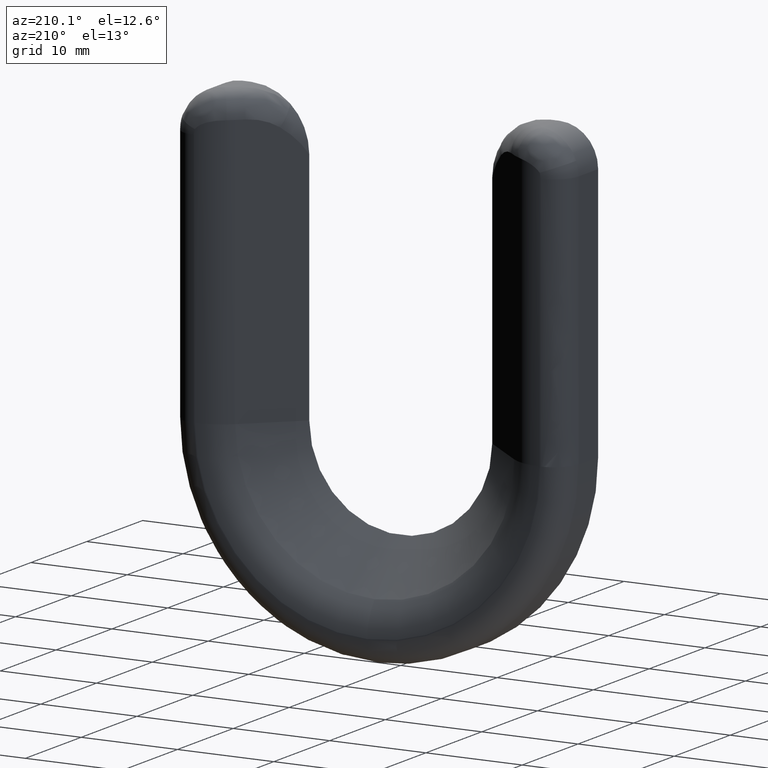
[diagram: clean part render]
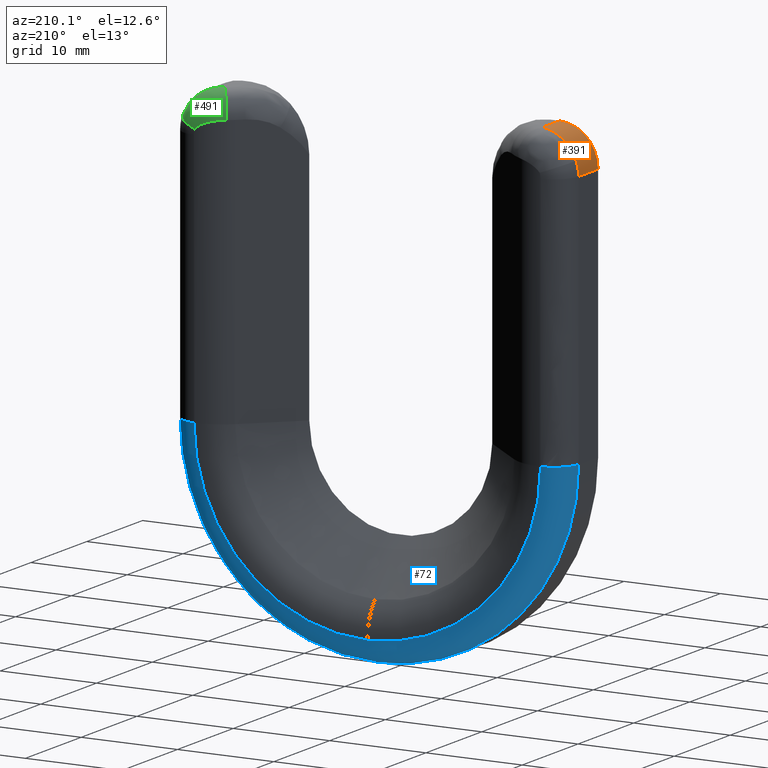
[diagram: same view with three faces highlighted in distinct colors, each labeled with its STEP entity id]
A machine part, auxiliary view with three faces highlighted in distinct colors.
Their STEP definitions:

[orange] entity #391 — the highlighted cylindrical surface (partial cylindrical patch) has radius 4 mm, axis along (0, -1, 0).
#16 = CYLINDRICAL_SURFACE ( 'NONE', #184, 4.000000000000003600 ) ;
#42 = VERTEX_POINT ( 'NONE', #367 ) ;
#66 = LINE ( 'NONE', #523, #816 ) ;
#156 = VERTEX_POINT ( 'NONE', #856 ) ;
#172 = CARTESIAN_POINT ( 'NONE',  ( -16.49999999999998900, 3.068681908964094000, 39.99999999999999300 ) ) ;
#184 = AXIS2_PLACEMENT_3D ( 'NONE', #806, #1014, #908 ) ;
#192 = VERTEX_POINT ( 'NONE', #291 ) ;
#217 = ORIENTED_EDGE ( 'NONE', *, *, #424, .F. ) ;
#223 = VERTEX_POINT ( 'NONE', #945 ) ;
#226 = DIRECTION ( 'NONE',  ( 0.0000000000000000000, 0.0000000000000000000, 1.000000000000000000 ) ) ;
#232 = CARTESIAN_POINT ( 'NONE',  ( -18.06440124175900800, 3.367900978395285300, 39.70351727990505700 ) ) ;
#291 = CARTESIAN_POINT ( 'NONE',  ( -16.49999999999998900, 0.0000000000000000000, 39.99999999999999300 ) ) ;
#325 = CARTESIAN_POINT ( 'NONE',  ( -19.10046779091603900, 3.466389364556989000, 39.06664757796588800 ) ) ;
#329 = DIRECTION ( 'NONE',  ( -0.0000000000000000000, 1.000000000000000000, -0.0000000000000000000 ) ) ;
#353 = EDGE_CURVE ( 'NONE', #678, #192, #66, .T. ) ;
#367 = CARTESIAN_POINT ( 'NONE',  ( -20.24337236859404500, 3.500000000000000000, 37.40966780130870000 ) ) ;
#391 = ADVANCED_FACE ( 'NONE', ( #594 ), #16, .T. ) ;
#402 = DIRECTION ( 'NONE',  ( -0.0000000000000000000, -1.000000000000000000, -0.0000000000000000000 ) ) ;
#423 = CARTESIAN_POINT ( 'NONE',  ( -19.90062501567306400, 3.498501515345013900, 38.14549419339217500 ) ) ;
#424 = EDGE_CURVE ( 'NONE', #223, #156, #536, .T. ) ;
#450 = AXIS2_PLACEMENT_3D ( 'NONE', #1091, #402, #1184 ) ;
#486 = EDGE_CURVE ( 'NONE', #42, #156, #946, .T. ) ;
#523 = CARTESIAN_POINT ( 'NONE',  ( -16.49999999999998900, 6.000000000000000000, 39.99999999999999300 ) ) ;
#524 = CARTESIAN_POINT ( 'NONE',  ( -20.24337236859404500, 3.500000000000000000, 37.40966780130870000 ) ) ;
#536 = LINE ( 'NONE', #914, #748 ) ;
#591 = ORIENTED_EDGE ( 'NONE', *, *, #1236, .T. ) ;
#594 = FACE_OUTER_BOUND ( 'NONE', #1165, .T. ) ;
#609 = CARTESIAN_POINT ( 'NONE',  ( -16.89687439914827700, 3.169673434943658400, 39.99999999999999300 ) ) ;
#613 = EDGE_CURVE ( 'NONE', #192, #223, #1129, .T. ) ;
#630 = B_SPLINE_CURVE_WITH_KNOTS ( 'NONE', 3,
 ( #709, #609, #800, #232, #902, #325, #1008, #423, #1104, #524 ),
 .UNSPECIFIED., .F., .F.,
 ( 4, 2, 2, 2, 4 ),
 ( 0.0000000000000000000, 0.001215186553605707500, 0.002430373107211415100, 0.003645559660817122800, 0.004860746214422830200 ),
 .UNSPECIFIED. ) ;
#678 = VERTEX_POINT ( 'NONE', #172 ) ;
#709 = CARTESIAN_POINT ( 'NONE',  ( -16.49999999999998900, 3.068681908964094000, 39.99999999999999300 ) ) ;
#712 = DIRECTION ( 'NONE',  ( 0.0000000000000000000, -1.000000000000000000, 0.0000000000000000000 ) ) ;
#748 = VECTOR ( 'NONE', #329, 1000.000000000000000 ) ;
#797 = CARTESIAN_POINT ( 'NONE',  ( -16.49999999999998900, 0.0000000000000000000, 35.99999999999999300 ) ) ;
#800 = CARTESIAN_POINT ( 'NONE',  ( -17.29182695291889300, 3.247122382974473100, 39.94162422922377000 ) ) ;
#806 = CARTESIAN_POINT ( 'NONE',  ( -16.49999999999998900, 6.000000000000000000, 35.99999999999999300 ) ) ;
#816 = VECTOR ( 'NONE', #712, 1000.000000000000000 ) ;
#856 = CARTESIAN_POINT ( 'NONE',  ( -20.49999999999998900, 3.500000000000001300, 35.99999999999999300 ) ) ;
#890 = DIRECTION ( 'NONE',  ( -0.0000000000000000000, -1.000000000000000000, -0.0000000000000000000 ) ) ;
#902 = CARTESIAN_POINT ( 'NONE',  ( -18.42712665924722500, 3.408916501183022300, 39.52887275744740200 ) ) ;
#908 = DIRECTION ( 'NONE',  ( 0.0000000000000000000, 0.0000000000000000000, -1.000000000000000000 ) ) ;
#914 = CARTESIAN_POINT ( 'NONE',  ( -20.49999999999998900, 6.000000000000000000, 35.99999999999999300 ) ) ;
#945 = CARTESIAN_POINT ( 'NONE',  ( -20.49999999999998900, 0.0000000000000000000, 35.99999999999999300 ) ) ;
#946 = CIRCLE ( 'NONE', #450, 4.000000000000003600 ) ;
#968 = ORIENTED_EDGE ( 'NONE', *, *, #613, .F. ) ;
#1008 = CARTESIAN_POINT ( 'NONE',  ( -19.39584570207941600, 3.481535554402674900, 38.78952926151512100 ) ) ;
#1014 = DIRECTION ( 'NONE',  ( 0.0000000000000000000, -1.000000000000000000, 0.0000000000000000000 ) ) ;
#1091 = CARTESIAN_POINT ( 'NONE',  ( -16.49999999999998900, 3.500000000000000000, 35.99999999999999300 ) ) ;
#1096 = ORIENTED_EDGE ( 'NONE', *, *, #353, .F. ) ;
#1103 = ORIENTED_EDGE ( 'NONE', *, *, #486, .T. ) ;
#1104 = CARTESIAN_POINT ( 'NONE',  ( -20.09905866763227400, 3.500000000000002200, 37.79289278530018900 ) ) ;
#1129 = CIRCLE ( 'NONE', #1159, 4.000000000000003600 ) ;
#1159 = AXIS2_PLACEMENT_3D ( 'NONE', #797, #890, #226 ) ;
#1165 = EDGE_LOOP ( 'NONE', ( #1096, #591, #1103, #217, #968 ) ) ;
#1184 = DIRECTION ( 'NONE',  ( 8.673617379884027600E-016, 0.0000000000000000000, 1.000000000000000000 ) ) ;
#1236 = EDGE_CURVE ( 'NONE', #678, #42, #630, .T. ) ;

[blue] entity #72 — the highlighted toroidal blend (fillet) surface has major radius 18 mm and minor (blend) radius 2.5 mm.
#27 = CARTESIAN_POINT ( 'NONE',  ( -20.49999999999999600, 3.500000000000001300, 9.500000000000010700 ) ) ;
#32 = AXIS2_PLACEMENT_3D ( 'NONE', #295, #198, #768 ) ;
#50 = EDGE_CURVE ( 'NONE', #1232, #755, #550, .T. ) ;
#69 = EDGE_CURVE ( 'NONE', #323, #518, #995, .T. ) ;
#72 = ADVANCED_FACE ( 'NONE', ( #1225 ), #704, .T. ) ;
#73 = DIRECTION ( 'NONE',  ( -0.0000000000000000000, -1.000000000000000000, -0.0000000000000000000 ) ) ;
#116 = EDGE_CURVE ( 'NONE', #518, #618, #158, .T. ) ;
#154 = CIRCLE ( 'NONE', #710, 20.50000000000000400 ) ;
#158 = CIRCLE ( 'NONE', #936, 2.499999999999998700 ) ;
#167 = DIRECTION ( 'NONE',  ( 0.0000000000000000000, 0.0000000000000000000, 1.000000000000000000 ) ) ;
#197 = CARTESIAN_POINT ( 'NONE',  ( 20.50000000000001100, 3.500000000000000000, 9.500000000000005300 ) ) ;
#198 = DIRECTION ( 'NONE',  ( 0.0000000000000000000, 1.000000000000000000, 0.0000000000000000000 ) ) ;
#263 = ORIENTED_EDGE ( 'NONE', *, *, #559, .F. ) ;
#295 = CARTESIAN_POINT ( 'NONE',  ( 6.938893903907228400E-015, 6.000000000000000000, 9.500000000000008900 ) ) ;
#323 = VERTEX_POINT ( 'NONE', #1002 ) ;
#363 = CARTESIAN_POINT ( 'NONE',  ( 18.00000000000001400, 3.500000000000000000, 9.500000000000005300 ) ) ;
#365 = CARTESIAN_POINT ( 'NONE',  ( 6.938893903907228400E-015, 3.500000000000000000, 9.500000000000008900 ) ) ;
#393 = CARTESIAN_POINT ( 'NONE',  ( -18.00000000000000000, 6.000000000000000900, 9.500000000000008900 ) ) ;
#420 = CARTESIAN_POINT ( 'NONE',  ( 18.00000000000001400, 6.000000000000000000, 9.500000000000005300 ) ) ;
#492 = AXIS2_PLACEMENT_3D ( 'NONE', #1237, #744, #646 ) ;
#511 = ORIENTED_EDGE ( 'NONE', *, *, #621, .F. ) ;
#518 = VERTEX_POINT ( 'NONE', #197 ) ;
#531 = ORIENTED_EDGE ( 'NONE', *, *, #50, .T. ) ;
#549 = ORIENTED_EDGE ( 'NONE', *, *, #69, .F. ) ;
#550 =( BOUNDED_CURVE ( )  B_SPLINE_CURVE ( 2, ( #688, #952, #393 ),
 .UNSPECIFIED., .F., .T. ) 
 B_SPLINE_CURVE_WITH_KNOTS ( ( 3, 3 ),
 ( 0.0000000000000000000, 1.000000000000000000 ),
 .UNSPECIFIED. ) 
 CURVE ( )  GEOMETRIC_REPRESENTATION_ITEM ( )  RATIONAL_B_SPLINE_CURVE ( ( 1.000000000000000000, 0.7071067811865474600, 1.000000000000000000 ) ) 
 REPRESENTATION_ITEM ( '' )  );
#558 = DIRECTION ( 'NONE',  ( 1.000000000000000000, 0.0000000000000000000, 0.0000000000000000000 ) ) ;
#559 = EDGE_CURVE ( 'NONE', #1232, #323, #154, .T. ) ;
#618 = VERTEX_POINT ( 'NONE', #420 ) ;
#621 = EDGE_CURVE ( 'NONE', #618, #755, #850, .T. ) ;
#646 = DIRECTION ( 'NONE',  ( 0.0000000000000000000, 0.0000000000000000000, 1.000000000000000000 ) ) ;
#650 = DIRECTION ( 'NONE',  ( 0.0000000000000000000, 0.0000000000000000000, 1.000000000000000000 ) ) ;
#688 = CARTESIAN_POINT ( 'NONE',  ( -20.49999999999999600, 3.500000000000001300, 9.500000000000010700 ) ) ;
#704 = TOROIDAL_SURFACE ( 'NONE', #741, 18.00000000000000700, 2.500000000000000000 ) ;
#710 = AXIS2_PLACEMENT_3D ( 'NONE', #365, #73, #650 ) ;
#741 = AXIS2_PLACEMENT_3D ( 'NONE', #746, #833, #167 ) ;
#744 = DIRECTION ( 'NONE',  ( -0.0000000000000000000, -1.000000000000000000, -0.0000000000000000000 ) ) ;
#746 = CARTESIAN_POINT ( 'NONE',  ( 6.938893903907228400E-015, 3.500000000000000000, 9.500000000000008900 ) ) ;
#751 = ORIENTED_EDGE ( 'NONE', *, *, #116, .F. ) ;
#755 = VERTEX_POINT ( 'NONE', #917 ) ;
#768 = DIRECTION ( 'NONE',  ( 0.0000000000000000000, 0.0000000000000000000, 1.000000000000000000 ) ) ;
#833 = DIRECTION ( 'NONE',  ( 0.0000000000000000000, 1.000000000000000000, 0.0000000000000000000 ) ) ;
#850 = CIRCLE ( 'NONE', #32, 18.00000000000000700 ) ;
#917 = CARTESIAN_POINT ( 'NONE',  ( -18.00000000000000000, 6.000000000000000900, 9.500000000000008900 ) ) ;
#936 = AXIS2_PLACEMENT_3D ( 'NONE', #363, #939, #558 ) ;
#939 = DIRECTION ( 'NONE',  ( 0.0000000000000000000, 0.0000000000000000000, 1.000000000000000000 ) ) ;
#952 = CARTESIAN_POINT ( 'NONE',  ( -20.49999999999999600, 6.000000000000000900, 9.500000000000010700 ) ) ;
#995 = CIRCLE ( 'NONE', #492, 20.50000000000000400 ) ;
#1002 = CARTESIAN_POINT ( 'NONE',  ( 6.938893903907228400E-015, 3.500000000000000000, -10.99999999999999600 ) ) ;
#1191 = EDGE_LOOP ( 'NONE', ( #531, #511, #751, #549, #263 ) ) ;
#1225 = FACE_OUTER_BOUND ( 'NONE', #1191, .T. ) ;
#1232 = VERTEX_POINT ( 'NONE', #27 ) ;
#1237 = CARTESIAN_POINT ( 'NONE',  ( 6.938893903907228400E-015, 3.500000000000000000, 9.500000000000008900 ) ) ;

[green] entity #491 — the highlighted face is a freeform B-spline surface patch.
#1 = CARTESIAN_POINT ( 'NONE',  ( 15.55390518256798600, 5.421562251320491300, 37.48771860806784400 ) ) ;
#7 = EDGE_LOOP ( 'NONE', ( #1045, #79, #1081, #578 ) ) ;
#9 = CARTESIAN_POINT ( 'NONE',  ( 17.69255101011138000, 6.160424451758079700, 39.89729704021700500 ) ) ;
#18 = CARTESIAN_POINT ( 'NONE',  ( 20.24337236859402700, 5.999999999999986700, 37.40966780130882800 ) ) ;
#63 = VERTEX_POINT ( 'NONE', #279 ) ;
#77 = CARTESIAN_POINT ( 'NONE',  ( 16.84996337146235500, 5.967564624330887700, 40.11500088435971600 ) ) ;
#79 = ORIENTED_EDGE ( 'NONE', *, *, #432, .F. ) ;
#91 = DIRECTION ( 'NONE',  ( 0.5615058552890974700, -0.8274727635856417000, 0.0000000000000000000 ) ) ;
#103 = CARTESIAN_POINT ( 'NONE',  ( 16.29045529359947200, 5.739739035027108500, 37.38344437926974700 ) ) ;
#113 = CARTESIAN_POINT ( 'NONE',  ( 20.24337236859402400, 3.500000000000001800, 37.40966780130883500 ) ) ;
#127 = CARTESIAN_POINT ( 'NONE',  ( 19.17927839874874300, 6.227292791573201000, 39.02502560940524000 ) ) ;
#179 = CARTESIAN_POINT ( 'NONE',  ( 15.30613592722471800, 5.279798037324646900, 40.06253507175741600 ) ) ;
#203 = CARTESIAN_POINT ( 'NONE',  ( 15.09623536177726400, 5.137363817928209300, 37.49999999999999300 ) ) ;
#209 = CARTESIAN_POINT ( 'NONE',  ( 17.04255175190604600, 5.931038541302804400, 37.15441873281688600 ) ) ;
#218 = CARTESIAN_POINT ( 'NONE',  ( 17.79113922220979300, 6.000000000000002700, 36.67816376905371800 ) ) ;
#228 = CARTESIAN_POINT ( 'NONE',  ( 17.90376463822277100, 6.000000000000000000, 36.52862542549079400 ) ) ;
#257 = CARTESIAN_POINT ( 'NONE',  ( 16.85599088289995300, 3.154661464012670400, 39.98842175160896800 ) ) ;
#270 = CARTESIAN_POINT ( 'NONE',  ( 17.78757650712125800, 3.325474914608258300, 39.79217689089283300 ) ) ;
#274 = CARTESIAN_POINT ( 'NONE',  ( 19.38538782832514300, 3.479838645305988200, 38.77764761881028500 ) ) ;
#279 = CARTESIAN_POINT ( 'NONE',  ( 20.24337236859402000, 3.500000000000000000, 37.40966780130884900 ) ) ;
#287 = CARTESIAN_POINT ( 'NONE',  ( 16.67606909255280100, 3.113485718487033300, 39.99999999999999300 ) ) ;
#294 = CARTESIAN_POINT ( 'NONE',  ( 17.48727701714228600, 3.277700931515590700, 39.88148005010439300 ) ) ;
#299 = CARTESIAN_POINT ( 'NONE',  ( 16.47617538208885800, 5.794046612590610000, 37.33402739823503700 ) ) ;
#302 = CARTESIAN_POINT ( 'NONE',  ( 16.61196141213767400, 5.832105898499667900, 37.29681771009475700 ) ) ;
#313 = CARTESIAN_POINT ( 'NONE',  ( 20.08503257980859000, 6.053095173596013900, 37.83013916962027400 ) ) ;
#315 = B_SPLINE_CURVE_WITH_KNOTS ( 'NONE', 3,
 ( #767, #638, #1253, #953, #274, #847, #484, #382, #963, #758, #1153, #294, #479, #971, #1162, #580 ),
 .UNSPECIFIED., .F., .F.,
 ( 4, 2, 2, 2, 2, 2, 2, 4 ),
 ( 0.0000000000000000000, 0.001212223257353838900, 0.001818334886030761400, 0.002424446514707684300, 0.003030558143384606300, 0.003636669772061529200, 0.004242781400738452100, 0.004848893029415374600 ),
 .UNSPECIFIED. ) ;
#317 = CARTESIAN_POINT ( 'NONE',  ( 17.82142452149323100, 6.000000000000396100, 36.63795250153054900 ) ) ;
#340 = CIRCLE ( 'NONE', #666, 2.500000000000000000 ) ;
#347 = CARTESIAN_POINT ( 'NONE',  ( 17.90376463822276800, 3.500000000000000000, 36.52862542549080900 ) ) ;
#348 = CARTESIAN_POINT ( 'NONE',  ( 15.36322852435634400, 5.309322929662678300, 37.49565816163526900 ) ) ;
#368 = CARTESIAN_POINT ( 'NONE',  ( 16.20160393499520900, 5.703567045159274200, 37.39650557148571900 ) ) ;
#374 = CIRCLE ( 'NONE', #974, 2.500000000000000000 ) ;
#377 = CARTESIAN_POINT ( 'NONE',  ( 17.97382476350762200, 3.351783519179319700, 39.72401484900906600 ) ) ;
#382 = CARTESIAN_POINT ( 'NONE',  ( 18.59917165903412700, 3.423628132912851300, 39.41096691884799700 ) ) ;
#406 = CARTESIAN_POINT ( 'NONE',  ( 17.63504364548560600, 5.996783933575277300, 36.81483031163351400 ) ) ;
#432 = EDGE_CURVE ( 'NONE', #514, #910, #542, .T. ) ;
#448 = DIRECTION ( 'NONE',  ( 0.9358430921485000300, 0.0000000000000000000, 0.3524169503272139800 ) ) ;
#449 = CARTESIAN_POINT ( 'NONE',  ( 16.02705816056155900, 5.661719341106890900, 40.16123930159886200 ) ) ;
#460 = CARTESIAN_POINT ( 'NONE',  ( 15.77907487930192300, 5.528733559574043000, 37.46247763252132800 ) ) ;
#474 = CARTESIAN_POINT ( 'NONE',  ( 18.33992002786507000, 3.397023309695623300, 39.55740640357962700 ) ) ;
#475 = CARTESIAN_POINT ( 'NONE',  ( 17.90376463822277100, 6.000000000000000000, 36.52862542549079400 ) ) ;
#479 = CARTESIAN_POINT ( 'NONE',  ( 17.28996314100020700, 3.242854679221999900, 39.92626829136511900 ) ) ;
#484 = CARTESIAN_POINT ( 'NONE',  ( 18.93374124260826700, 3.452131258880614300, 39.18089932874259800 ) ) ;
#491 = ADVANCED_FACE ( 'NONE', ( #1189 ), #752, .T. ) ;
#497 = CARTESIAN_POINT ( 'NONE',  ( 18.52096807254745400, 3.416052943189751300, 39.45818056260081600 ) ) ;
#508 = CARTESIAN_POINT ( 'NONE',  ( 17.90376463822278600, 6.000000000000001800, 36.52862542549080200 ) ) ;
#514 = VERTEX_POINT ( 'NONE', #793 ) ;
#517 = CARTESIAN_POINT ( 'NONE',  ( 17.72423498095031000, 5.997896757526059600, 36.73001991614142300 ) ) ;
#542 = B_SPLINE_CURVE_WITH_KNOTS ( 'NONE', 3,
 ( #203, #892, #1, #686, #103, #776, #209, #1198, #798, #517, #317, #228 ),
 .UNSPECIFIED., .F., .F.,
 ( 4, 2, 2, 2, 2, 4 ),
 ( 0.0000000000000000000, 0.0008068769139473474800, 0.001613753827894700200, 0.002420630741842052600, 0.002824069198815724100, 0.003227507655789395100 ),
 .UNSPECIFIED. ) ;
#548 = CARTESIAN_POINT ( 'NONE',  ( 17.41045269309355000, 3.264366776086283100, 39.89994034917854300 ) ) ;
#554 = EDGE_CURVE ( 'NONE', #63, #749, #315, .T. ) ;
#578 = ORIENTED_EDGE ( 'NONE', *, *, #554, .F. ) ;
#580 = CARTESIAN_POINT ( 'NONE',  ( 16.49999999999998900, 3.068681908964105500, 39.99999999999999300 ) ) ;
#603 = CARTESIAN_POINT ( 'NONE',  ( 17.00347954923932300, 5.925596280198957900, 37.16832148324160600 ) ) ;
#638 = CARTESIAN_POINT ( 'NONE',  ( 20.09904350051035500, 3.500000000000001800, 37.79293306158732000 ) ) ;
#653 = CARTESIAN_POINT ( 'NONE',  ( 15.09623536177726200, 5.137363817928208400, 37.49999999999999300 ) ) ;
#666 = AXIS2_PLACEMENT_3D ( 'NONE', #347, #1028, #448 ) ;
#671 = DIRECTION ( 'NONE',  ( -0.8274727635856417000, -0.5615058552890976900, -5.741745714893671700E-015 ) ) ;
#673 = CARTESIAN_POINT ( 'NONE',  ( 17.13266801104400000, 6.044718765631112800, 40.06169930387829900 ) ) ;
#686 = CARTESIAN_POINT ( 'NONE',  ( 16.04079081303507700, 5.647728556004320700, 37.42920461197191200 ) ) ;
#694 = CARTESIAN_POINT ( 'NONE',  ( 20.09335941470821400, 3.500000013169997100, 37.80802714950839800 ) ) ;
#707 = CARTESIAN_POINT ( 'NONE',  ( 19.35368331530791900, 3.479658012325690800, 38.83489922665442900 ) ) ;
#749 = VERTEX_POINT ( 'NONE', #919 ) ;
#752 =( BOUNDED_SURFACE ( )  B_SPLINE_SURFACE ( 3, 2, ( 
 ( #508, #18, #113 ),
 ( #218, #313, #694 ),
 ( #406, #994, #976 ),
 ( #1094, #127, #707 ),
 ( #603, #979, #1082 ),
 ( #302, #1078, #497 ),
 ( #299, #9, #474 ),
 ( #368, #673, #377 ),
 ( #1228, #77, #270 ),
 ( #460, #1042, #548 ),
 ( #1132, #449, #1029 ),
 ( #348, #930, #257 ),
 ( #826, #179, #287 ),
 ( #653, #754, #860 ) ),
 .UNSPECIFIED., .F., .F., .T. ) 
 B_SPLINE_SURFACE_WITH_KNOTS ( ( 4, 2, 2, 2, 2, 2, 4 ),
 ( 3, 3 ),
 ( 0.0000000000000000000, 0.0004724850626663393800, 0.0009449701253326787500, 0.001181212656665848500, 0.001417455187999018000, 0.001653697719332187800, 0.001889940250665357500 ),
 ( 0.0000000000000000000, 1.000000000000000000 ),
 .UNSPECIFIED. ) 
 GEOMETRIC_REPRESENTATION_ITEM ( )  RATIONAL_B_SPLINE_SURFACE ( (
 ( 1.000000000000000000, 0.7071067811865497900, 1.000000000000000000),
 ( 1.000000000000000000, 0.6996984176977365500, 1.000000000000000000),
 ( 1.000000000000000000, 0.6899410525661063800, 1.000000000000000000),
 ( 1.000000000000000000, 0.6716811036168998100, 1.000000000000000000),
 ( 1.000000000000000000, 0.6637046277271010400, 1.000000000000000000),
 ( 1.000000000000000000, 0.6589138786076843600, 1.000000000000000000),
 ( 1.000000000000000000, 0.6585641584893267000, 1.000000000000000000),
 ( 1.000000000000000000, 0.6607993942688512600, 1.000000000000000000),
 ( 1.000000000000000000, 0.6633717764190704100, 1.000000000000000000),
 ( 1.000000000000000000, 0.6715574034775414500, 1.000000000000000000),
 ( 1.000000000000000000, 0.6771140731640592500, 1.000000000000000000),
 ( 1.000000000000000000, 0.6905102359961863300, 1.000000000000000000),
 ( 1.000000000000000000, 0.6983680992249370300, 1.000000000000000000),
 ( 1.000000000000000000, 0.7071067811865489100, 1.000000000000000000) ) ) 
 REPRESENTATION_ITEM ( '' )  SURFACE ( )  );
#754 = CARTESIAN_POINT ( 'NONE',  ( 15.09623536177725200, 5.137363817928200400, 39.99999999999998600 ) ) ;
#758 = CARTESIAN_POINT ( 'NONE',  ( 18.05935726849679300, 3.363115385970931300, 39.68903569671390800 ) ) ;
#767 = CARTESIAN_POINT ( 'NONE',  ( 20.24337236859402000, 3.500000000000000000, 37.40966780130884900 ) ) ;
#776 = CARTESIAN_POINT ( 'NONE',  ( 16.79185679483625600, 5.881757276783033300, 37.24566273559948100 ) ) ;
#778 = EDGE_CURVE ( 'NONE', #63, #910, #340, .T. ) ;
#793 = CARTESIAN_POINT ( 'NONE',  ( 15.09623536177726400, 5.137363817928209300, 37.49999999999999300 ) ) ;
#798 = CARTESIAN_POINT ( 'NONE',  ( 17.51289215857752900, 5.985822058736737900, 36.89412921838865600 ) ) ;
#826 = CARTESIAN_POINT ( 'NONE',  ( 15.22828498546478000, 5.226969953806285900, 37.50000000667409900 ) ) ;
#847 = CARTESIAN_POINT ( 'NONE',  ( 19.09093532021591600, 3.462996834777669600, 39.05415182670851900 ) ) ;
#860 = CARTESIAN_POINT ( 'NONE',  ( 16.49999999999998900, 3.068681908964105100, 39.99999999999999300 ) ) ;
#892 = CARTESIAN_POINT ( 'NONE',  ( 15.32004261762987900, 5.289234779907515900, 37.50000000000000000 ) ) ;
#910 = VERTEX_POINT ( 'NONE', #475 ) ;
#919 = CARTESIAN_POINT ( 'NONE',  ( 16.49999999999998900, 3.068681908964105500, 39.99999999999999300 ) ) ;
#930 = CARTESIAN_POINT ( 'NONE',  ( 15.53362131280298000, 5.413900958405432300, 40.10951010331363200 ) ) ;
#953 = CARTESIAN_POINT ( 'NONE',  ( 19.52337378618133500, 3.485828554718847400, 38.62694483093060400 ) ) ;
#963 = CARTESIAN_POINT ( 'NONE',  ( 18.42209358962688300, 3.405955849082622100, 39.51370683113408700 ) ) ;
#971 = CARTESIAN_POINT ( 'NONE',  ( 16.89624606594782100, 3.163690999314186800, 39.98529967695517200 ) ) ;
#974 = AXIS2_PLACEMENT_3D ( 'NONE', #1261, #671, #91 ) ;
#976 = CARTESIAN_POINT ( 'NONE',  ( 19.88507769791384300, 3.498391978669849000, 38.17288082241964300 ) ) ;
#979 = CARTESIAN_POINT ( 'NONE',  ( 18.74797922726269700, 6.258187983667153500, 39.37809391396352500 ) ) ;
#994 = CARTESIAN_POINT ( 'NONE',  ( 19.85263385963220600, 6.122188266157332100, 38.23973091168301200 ) ) ;
#1028 = DIRECTION ( 'NONE',  ( -0.3524169503272140400, 2.597486370849167100E-015, 0.9358430921485000300 ) ) ;
#1029 = CARTESIAN_POINT ( 'NONE',  ( 17.22267948666898400, 3.230022899790603300, 39.93852408104398000 ) ) ;
#1042 = CARTESIAN_POINT ( 'NONE',  ( 16.29365961750457000, 5.774693384808487400, 40.16483389966136700 ) ) ;
#1045 = ORIENTED_EDGE ( 'NONE', *, *, #778, .T. ) ;
#1078 = CARTESIAN_POINT ( 'NONE',  ( 17.96897361694331300, 6.198439478695669400, 39.78579738375562200 ) ) ;
#1081 = ORIENTED_EDGE ( 'NONE', *, *, #1120, .F. ) ;
#1082 = CARTESIAN_POINT ( 'NONE',  ( 19.04299223914879800, 3.462798152219679800, 39.11552395061459500 ) ) ;
#1094 = CARTESIAN_POINT ( 'NONE',  ( 17.23649783798525400, 5.959316048415796100, 37.06308720676924700 ) ) ;
#1120 = EDGE_CURVE ( 'NONE', #749, #514, #374, .T. ) ;
#1132 = CARTESIAN_POINT ( 'NONE',  ( 15.63824497637489900, 5.460045797943867500, 37.47694652560957700 ) ) ;
#1153 = CARTESIAN_POINT ( 'NONE',  ( 17.87235308430209500, 3.337854052055586600, 39.76261216443342100 ) ) ;
#1162 = CARTESIAN_POINT ( 'NONE',  ( 16.69846499204863500, 3.119184744227674800, 40.00000000000000700 ) ) ;
#1189 = FACE_OUTER_BOUND ( 'NONE', #7, .T. ) ;
#1198 = CARTESIAN_POINT ( 'NONE',  ( 17.39733157476903400, 5.975714293956587000, 36.96626545289806400 ) ) ;
#1228 = CARTESIAN_POINT ( 'NONE',  ( 16.06191774441373000, 5.650949821815033600, 37.42206633250543700 ) ) ;
#1253 = CARTESIAN_POINT ( 'NONE',  ( 19.90077502595186900, 3.498493085042253100, 38.14505058349396900 ) ) ;
#1261 = CARTESIAN_POINT ( 'NONE',  ( 16.50000000000000700, 3.068681908964105500, 37.49999999999999300 ) ) ;